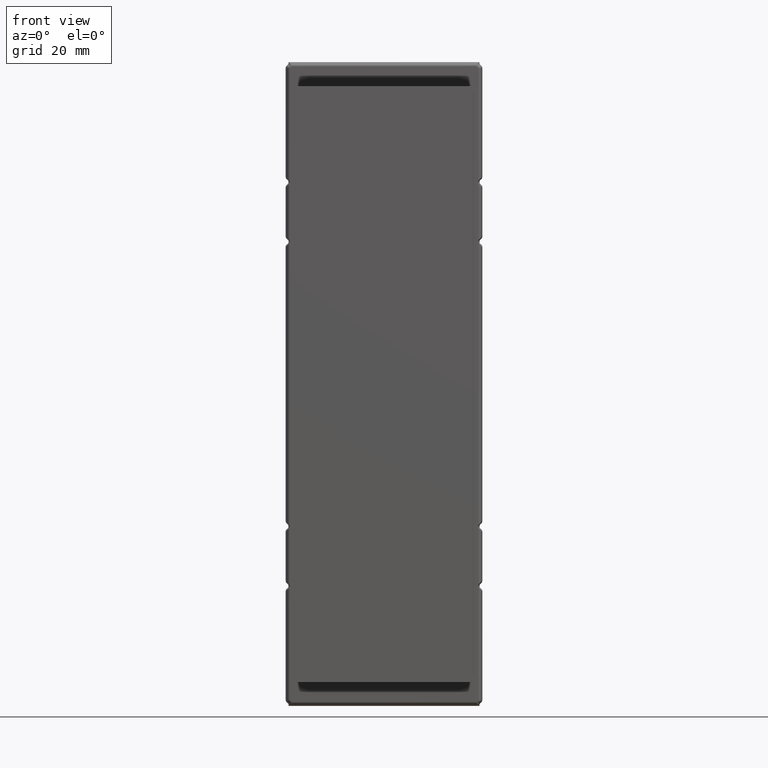
[diagram: clean part render]
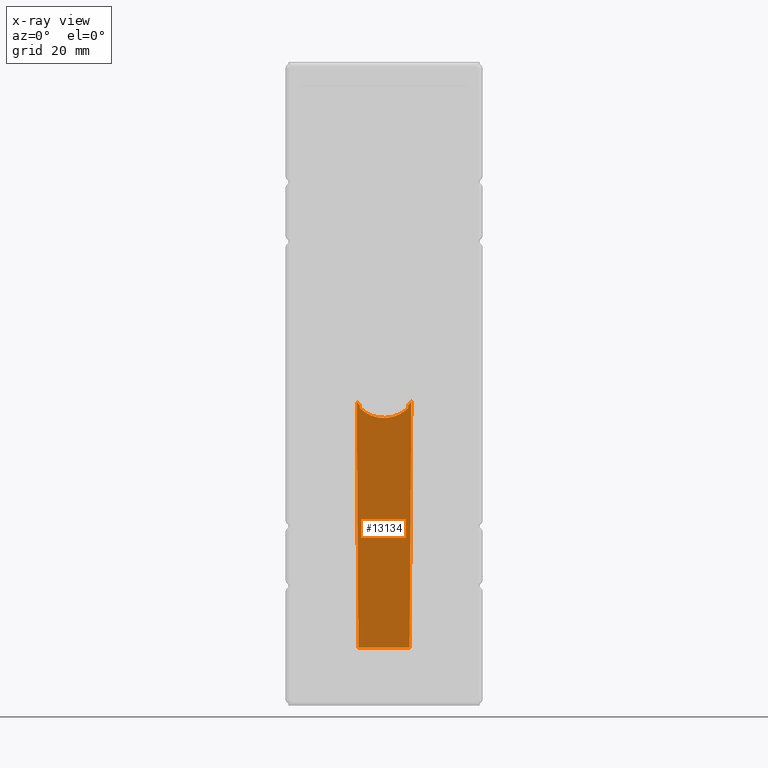
[diagram: x-ray — body ghosted, one internal face saturated and labeled with its STEP entity id]
A machine part, front view, then the same camera in x-ray: the body is ghosted and one INTERNAL B-rep face — a face not visible from any outside direction — is saturated and labeled: STEP entity #13134.
In plain terms, the highlighted planar face has unit normal (-0, 1, -0.0087).
Its self-contained STEP definition (entity closure, byte-faithful):
#335=LINE('',#18956,#1478);
#339=LINE('',#19657,#1482);
#340=LINE('',#19661,#1483);
#1478=VECTOR('',#15262,10.);
#1482=VECTOR('',#15298,10.);
#1483=VECTOR('',#15301,10.);
#2620=PLANE('',#14117);
#3019=ELLIPSE('',#14118,5.4751454282542,5.47435946564886);
#3020=ELLIPSE('',#14119,5.72271790356238,5.7225);
#3021=ELLIPSE('',#14120,5.4751454282542,5.47435946564886);
#3425=FACE_OUTER_BOUND('',#4285,.T.);
#4285=EDGE_LOOP('',(#9180,#9181,#9182,#9183,#9184,#9185,#9186,#9187));
#5529=(
BOUNDED_CURVE()
B_SPLINE_CURVE(2,(#18614,#18615,#18616),.UNSPECIFIED.,.F.,.F.)
B_SPLINE_CURVE_WITH_KNOTS((3,3),(10587.7076156399,10623.8568504526),
 .UNSPECIFIED.)
CURVE()
GEOMETRIC_REPRESENTATION_ITEM()
RATIONAL_B_SPLINE_CURVE((1.0000000005069,1.0000000005068,1.00000000050669))
REPRESENTATION_ITEM('')
);
#5533=(
BOUNDED_CURVE()
B_SPLINE_CURVE(2,(#19651,#19652,#19653),.UNSPECIFIED.,.F.,.F.)
B_SPLINE_CURVE_WITH_KNOTS((3,3),(9440.53329815699,9476.68253296824),
 .UNSPECIFIED.)
CURVE()
GEOMETRIC_REPRESENTATION_ITEM()
RATIONAL_B_SPLINE_CURVE((1.00000000050669,1.0000000005068,1.0000000005069))
REPRESENTATION_ITEM('')
);
#5871=VERTEX_POINT('',#18611);
#5872=VERTEX_POINT('',#18613);
#5904=VERTEX_POINT('',#18939);
#5930=VERTEX_POINT('',#19650);
#5931=VERTEX_POINT('',#19654);
#5932=VERTEX_POINT('',#19656);
#5933=VERTEX_POINT('',#19658);
#5934=VERTEX_POINT('',#19660);
#7074=EDGE_CURVE('',#5872,#5871,#5529,.F.);
#7115=EDGE_CURVE('',#5904,#5871,#335,.T.);
#7145=EDGE_CURVE('',#5904,#5930,#5533,.F.);
#7146=EDGE_CURVE('',#5931,#5930,#3019,.T.);
#7147=EDGE_CURVE('',#5932,#5931,#339,.T.);
#7148=EDGE_CURVE('',#5933,#5932,#3020,.T.);
#7149=EDGE_CURVE('',#5934,#5933,#340,.T.);
#7150=EDGE_CURVE('',#5872,#5934,#3021,.T.);
#9180=ORIENTED_EDGE('',*,*,#7115,.F.);
#9181=ORIENTED_EDGE('',*,*,#7145,.T.);
#9182=ORIENTED_EDGE('',*,*,#7146,.F.);
#9183=ORIENTED_EDGE('',*,*,#7147,.F.);
#9184=ORIENTED_EDGE('',*,*,#7148,.F.);
#9185=ORIENTED_EDGE('',*,*,#7149,.F.);
#9186=ORIENTED_EDGE('',*,*,#7150,.F.);
#9187=ORIENTED_EDGE('',*,*,#7074,.T.);
#13134=ADVANCED_FACE('',(#3425),#2620,.F.);
#14117=AXIS2_PLACEMENT_3D('',#19649,#15294,#15295);
#14118=AXIS2_PLACEMENT_3D('',#19655,#15296,#15297);
#14119=AXIS2_PLACEMENT_3D('',#19659,#15299,#15300);
#14120=AXIS2_PLACEMENT_3D('',#19662,#15302,#15303);
#15262=DIRECTION('',(-1.,-5.55111512312578E-17,0.));
#15294=DIRECTION('center_axis',(-5.55090375367146E-17,0.999961923064171,
-0.00872653549837399));
#15295=DIRECTION('ref_axis',(1.,5.55111512312578E-17,-1.92592994438724E-34));
#15296=DIRECTION('center_axis',(5.55090375367146E-17,-0.999961923064171,
0.00872653549837399));
#15297=DIRECTION('ref_axis',(-8.63669477929333E-12,-0.00872653549837399,
-0.999961923064171));
#15298=DIRECTION('',(-0.00284444220504162,0.00872650080132446,0.999957877779013));
#15299=DIRECTION('center_axis',(5.55090375367146E-17,-0.999961923064171,
0.00872653549837399));
#15300=DIRECTION('ref_axis',(4.84420031775178E-19,-0.00872653549837399,
-0.999961923064171));
#15301=DIRECTION('',(-0.00284444220504162,-0.00872650080132446,-0.999957877779013));
#15302=DIRECTION('center_axis',(5.55090375367146E-17,-0.999961923064171,
0.00872653549837399));
#15303=DIRECTION('ref_axis',(-8.63669477929333E-12,-0.00872653549837399,
-0.999961923064171));
#18611=CARTESIAN_POINT('',(-4.29745133848339,-12.5356848819146,-10.5087265355025));
#18613=CARTESIAN_POINT('',(-4.57710223040043,-12.1749615071038,30.8260780678368));
#18614=CARTESIAN_POINT('Ctrl Pts',(-4.29745133796697,-12.5356848820201,
-10.5087265354976));
#18615=CARTESIAN_POINT('Ctrl Pts',(-4.43727678379697,-12.3610066699358,
9.50741399424419));
#18616=CARTESIAN_POINT('Ctrl Pts',(-4.57710222962702,-12.174961507089,30.8260780679481));
#18939=CARTESIAN_POINT('',(4.29745133848333,-12.5356848819146,-10.508726535503));
#18956=CARTESIAN_POINT('',(2.37520525428857,-12.5356848820409,-10.5087265354984));
#19649=CARTESIAN_POINT('Origin',(4.75041050857713,-11.94,57.75));
#19650=CARTESIAN_POINT('',(4.57710223039663,-12.1749615071089,30.8260780672623));
#19651=CARTESIAN_POINT('Ctrl Pts',(4.57710222961561,-12.1749615071041,30.8260780662246));
#19652=CARTESIAN_POINT('Ctrl Pts',(4.43727678379121,-12.3610066699429,9.50741399343429));
#19653=CARTESIAN_POINT('Ctrl Pts',(4.29745133796686,-12.5356848820201,-10.5087265354984));
#19654=CARTESIAN_POINT('',(4.04013823415912,-12.1809916421067,30.135093008427));
#19655=CARTESIAN_POINT('Origin',(3.33066907387547E-15,-12.1487508865742,
33.829517694163));
#19656=CARTESIAN_POINT('',(4.04138001019624,-12.1848013027719,29.6985491656462));
#19657=CARTESIAN_POINT('',(4.04138001019624,-12.1848013027719,29.6985491656462));
#19658=CARTESIAN_POINT('',(-4.04138001019624,-12.1848013027719,29.6985491656462));
#19659=CARTESIAN_POINT('Origin',(1.78465269379137E-15,-12.1494448269782,
33.75));
#19660=CARTESIAN_POINT('',(-4.04013823415912,-12.1809916421067,30.135093008427));
#19661=CARTESIAN_POINT('',(-4.04013823415912,-12.1809916421067,30.135093008427));
#19662=CARTESIAN_POINT('Origin',(3.33066907387547E-15,-12.1487508865742,
33.829517694163));